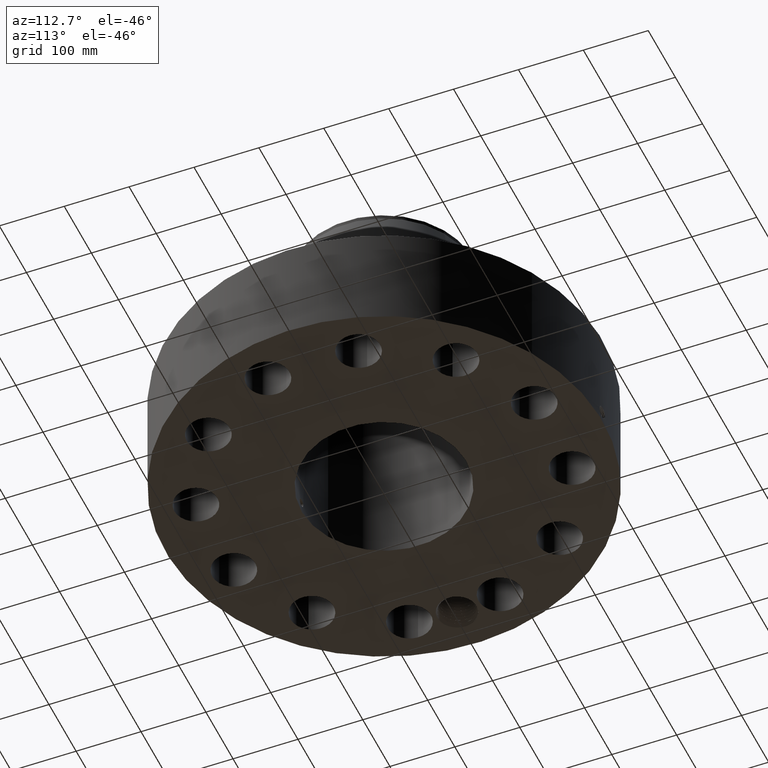
[diagram: clean part render]
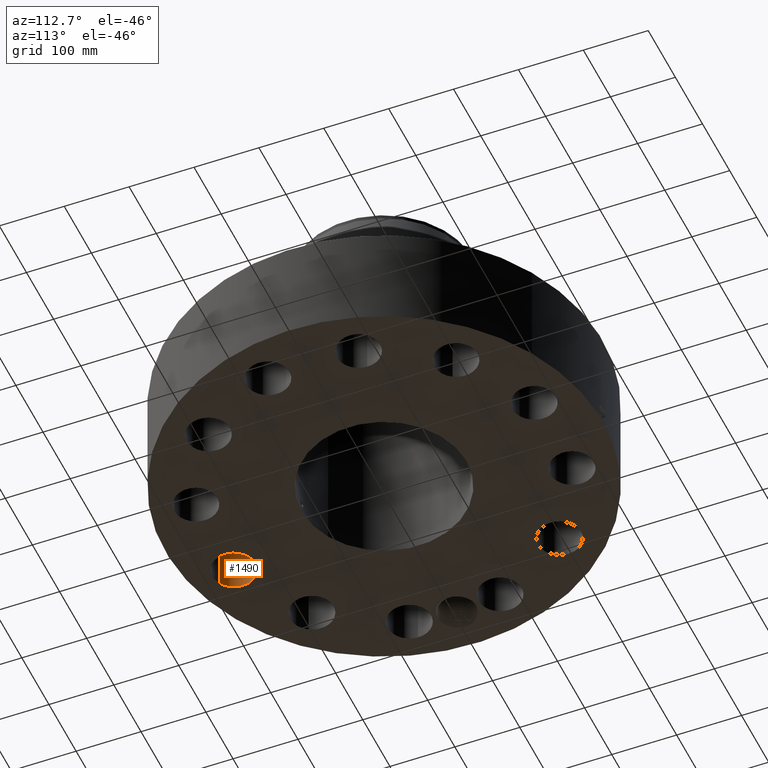
[diagram: same view with one face highlighted and labeled with its STEP entity id]
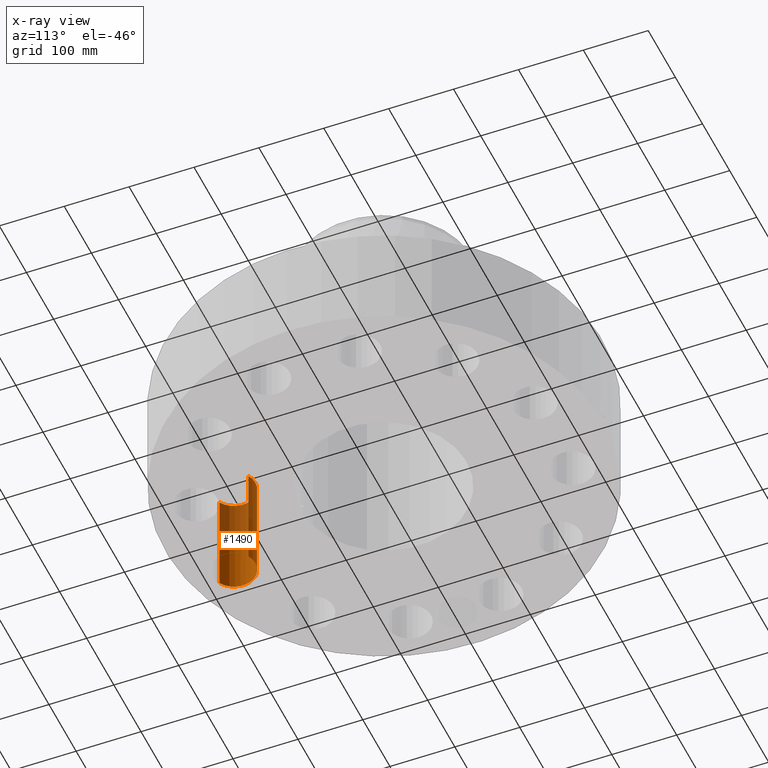
[diagram: x-ray of the same camera — body ghosted, the highlighted face saturated]
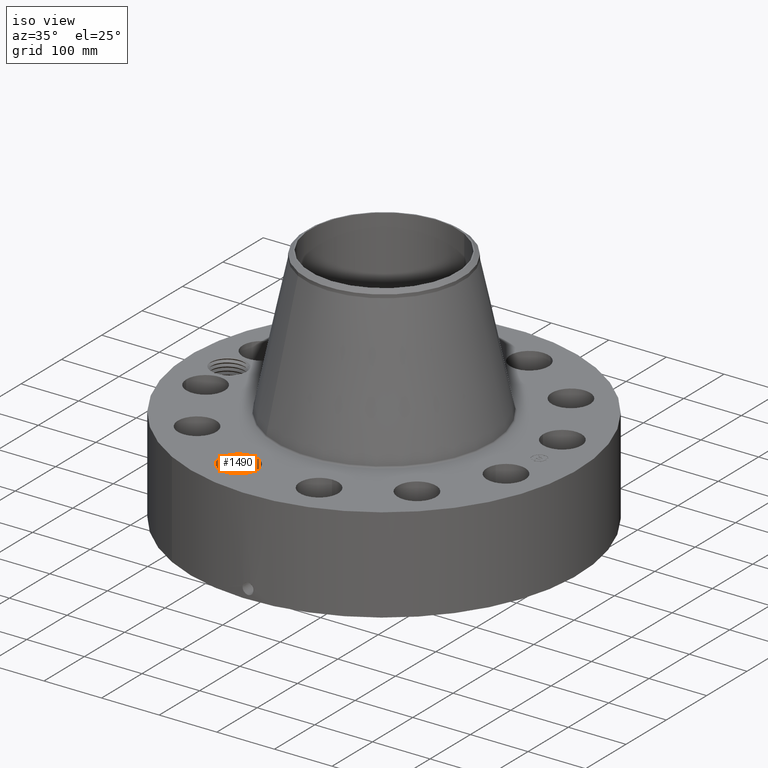
[diagram: same view with one face highlighted and labeled with its STEP entity id]
A machine part, auxiliary view. The second image highlights one B-rep face of the part: STEP entity #1490.
The next image is the same camera in x-ray: the body ghosted, the highlighted face saturated — about 49% of this face is hidden behind the body in this view.
A second angle (iso view) of the same face is appended — the face is thin or edge-on in the first view.
In plain terms, the highlighted cylindrical surface (edge-blend (fillet) strip) has radius 33.274 mm, axis along (0, -0, -1).
Its self-contained STEP definition (entity closure, byte-faithful):
#320=AXIS2_PLACEMENT_3D('Circle Axis2P3D',#318,#319,$) ;
#715=AXIS2_PLACEMENT_3D('Circle Axis2P3D',#713,#714,$) ;
#1465=AXIS2_PLACEMENT_3D('Cylinder Axis2P3D',#1462,#1463,#1464) ;
#313=CARTESIAN_POINT('Vertex',(-2.12190489865,-9.11332874828,0.250000000001)) ;
#315=CARTESIAN_POINT('Vertex',(-3.3779998098,-11.4125950604,0.250000000001)) ;
#318=CARTESIAN_POINT('Axis2P3D Location',(-2.74995235423,-10.2629619044,0.250000000001)) ;
#713=CARTESIAN_POINT('Axis2P3D Location',(-2.74995235423,-10.2629619044,6.75000000003)) ;
#717=CARTESIAN_POINT('Vertex',(-3.3779998098,-11.4125950604,6.75000000003)) ;
#719=CARTESIAN_POINT('Vertex',(-2.12190489865,-9.11332874828,6.75000000003)) ;
#1462=CARTESIAN_POINT('Axis2P3D Location',(-2.74995235423,-10.2629619044,6.74606299215)) ;
#1467=CARTESIAN_POINT('Line Origine',(-2.12190489865,-9.11332874828,3.50000000001)) ;
#1472=CARTESIAN_POINT('Line Origine',(-3.3779998098,-11.4125950604,3.50000000001)) ;
#319=DIRECTION('Axis2P3D Direction',(0.,0.,-0.0393700787402)) ;
#714=DIRECTION('Axis2P3D Direction',(0.,0.,-0.0393700787402)) ;
#1463=DIRECTION('Axis2P3D Direction',(0.,-0.,-0.0393700787402)) ;
#1464=DIRECTION('Axis2P3D XDirection',(-0.0188750212049,-0.0345504945626,0.)) ;
#1468=DIRECTION('Vector Direction',(0.,0.,-0.0393700787402)) ;
#1473=DIRECTION('Vector Direction',(0.,0.,-0.0393700787402)) ;
#1469=VECTOR('Line Direction',#1468,0.0393700787402) ;
#1474=VECTOR('Line Direction',#1473,0.0393700787402) ;
#1485=ORIENTED_EDGE('',*,*,#1476,.F.) ;
#1486=ORIENTED_EDGE('',*,*,#322,.T.) ;
#1487=ORIENTED_EDGE('',*,*,#1471,.T.) ;
#1488=ORIENTED_EDGE('',*,*,#721,.F.) ;
#1490=ADVANCED_FACE('PartBody',(#1489),#1466,.F.) ;
#321=CIRCLE('generated circle',#320,1.31000000001) ;
#716=CIRCLE('generated circle',#715,1.31000000001) ;
#1466=CYLINDRICAL_SURFACE('generated cylinder',#1465,1.31000000001) ;
#322=EDGE_CURVE('',#316,#314,#321,.T.) ;
#721=EDGE_CURVE('',#718,#720,#716,.T.) ;
#1471=EDGE_CURVE('',#314,#720,#1470,.F.) ;
#1476=EDGE_CURVE('',#316,#718,#1475,.F.) ;
#1484=EDGE_LOOP('',(#1485,#1486,#1487,#1488)) ;
#1489=FACE_OUTER_BOUND('',#1484,.T.) ;
#1470=LINE('Line',#1467,#1469) ;
#1475=LINE('Line',#1472,#1474) ;
#314=VERTEX_POINT('',#313) ;
#316=VERTEX_POINT('',#315) ;
#718=VERTEX_POINT('',#717) ;
#720=VERTEX_POINT('',#719) ;